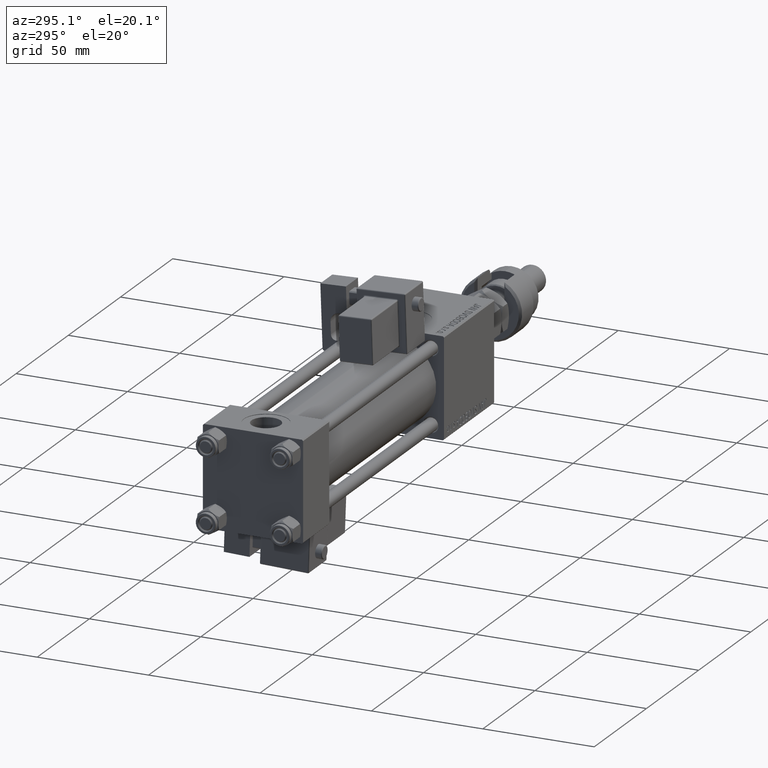
[diagram: clean part render]
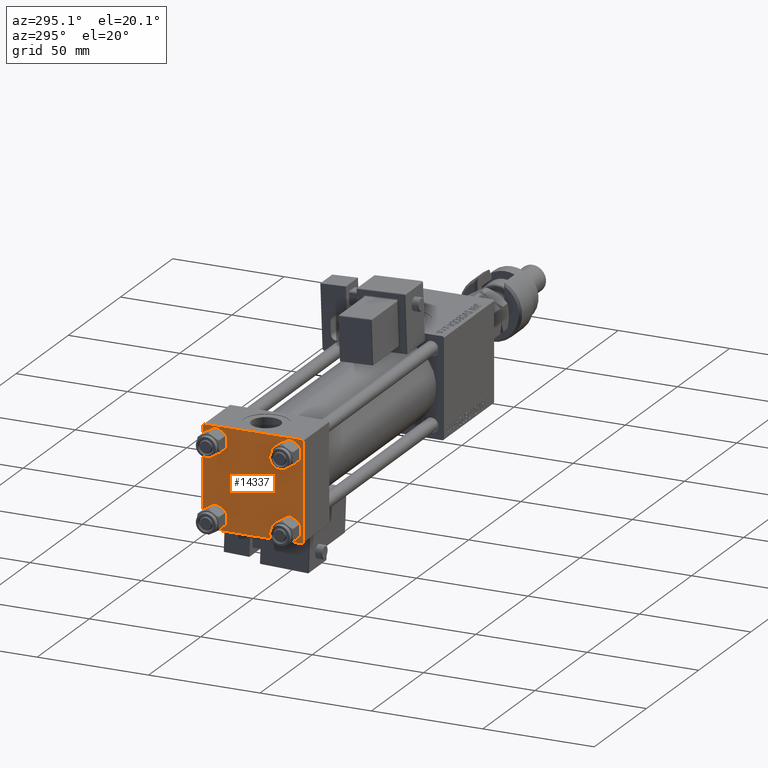
[diagram: same view with one face highlighted and labeled with its STEP entity id]
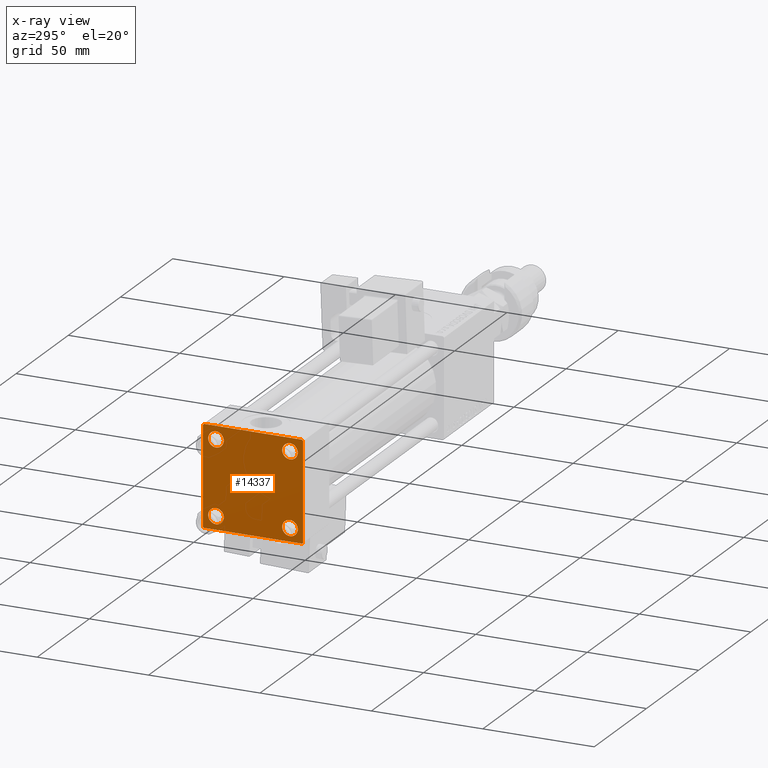
[diagram: x-ray of the same camera — body ghosted, the highlighted face saturated]
A machine part, auxiliary view. The second image highlights one B-rep face of the part: STEP entity #14337.
The next image is the same camera in x-ray: the body ghosted, the highlighted face saturated — about 0% of this face is hidden behind the body in this view.
In plain terms, the highlighted planar face has unit normal (-1, 0, 0).
Its self-contained STEP definition (entity closure, byte-faithful):
#476 = DIRECTION ( 'NONE',  ( 1.000000000000000000, -0.000000000000000000, 0.000000000000000000 ) ) ;
#650 = ORIENTED_EDGE ( 'NONE', *, *, #30111, .T. ) ;
#701 = EDGE_CURVE ( 'NONE', #41453, #17870, #5149, .T. ) ;
#1367 = FACE_BOUND ( 'NONE', #24085, .T. ) ;
#1560 = DIRECTION ( 'NONE',  ( 0.000000000000000000, -1.000000000000000000, -2.312964634635742957E-16 ) ) ;
#1892 = EDGE_CURVE ( 'NONE', #40376, #3879, #41025, .T. ) ;
#2124 = EDGE_CURVE ( 'NONE', #44728, #48340, #21496, .T. ) ;
#2799 = EDGE_LOOP ( 'NONE', ( #26345, #6309, #12219, #24289, #31680, #43144, #7114, #26350 ) ) ;
#2981 = DIRECTION ( 'NONE',  ( 0.000000000000000000, 0.000000000000000000, 1.000000000000000000 ) ) ;
#3831 = EDGE_CURVE ( 'NONE', #42418, #10926, #35740, .T. ) ;
#3879 = VERTEX_POINT ( 'NONE', #25430 ) ;
#4368 = CARTESIAN_POINT ( 'NONE',  ( 0.000000000000000000, -21.99999999999997158, -22.50000000000000711 ) ) ;
#4454 = DIRECTION ( 'NONE',  ( 1.000000000000000000, -0.000000000000000000, 0.000000000000000000 ) ) ;
#5149 = CIRCLE ( 'NONE', #42728, 3.499999999999996003 ) ;
#5194 = EDGE_LOOP ( 'NONE', ( #650, #6155 ) ) ;
#5552 = DIRECTION ( 'NONE',  ( 1.000000000000000000, -0.000000000000000000, 0.000000000000000000 ) ) ;
#6043 = CARTESIAN_POINT ( 'NONE',  ( 0.000000000000000000, -22.50000000000000000, 22.50000000000000000 ) ) ;
#6155 = ORIENTED_EDGE ( 'NONE', *, *, #3831, .T. ) ;
#6179 = CIRCLE ( 'NONE', #41207, 3.499999999999996003 ) ;
#6309 = ORIENTED_EDGE ( 'NONE', *, *, #50210, .T. ) ;
#6669 = CARTESIAN_POINT ( 'NONE',  ( 0.000000000000000000, 16.59999999999999787, 16.60000000000000497 ) ) ;
#7114 = ORIENTED_EDGE ( 'NONE', *, *, #2124, .F. ) ;
#7209 = LINE ( 'NONE', #19569, #28742 ) ;
#7250 = AXIS2_PLACEMENT_3D ( 'NONE', #23286, #4454, #50723 ) ;
#7616 = CARTESIAN_POINT ( 'NONE',  ( 0.000000000000000000, 22.25000000000014566, -22.24999999999984013 ) ) ;
#8020 = CIRCLE ( 'NONE', #10745, 3.499999999999996003 ) ;
#8082 = CARTESIAN_POINT ( 'NONE',  ( 0.000000000000000000, 21.99999999999999289, 22.50000000000000355 ) ) ;
#8653 = ORIENTED_EDGE ( 'NONE', *, *, #30195, .T. ) ;
#9037 = CIRCLE ( 'NONE', #27857, 3.499999999999996003 ) ;
#9195 = DIRECTION ( 'NONE',  ( 0.000000000000000000, 0.000000000000000000, 1.000000000000000000 ) ) ;
#9680 = VECTOR ( 'NONE', #14198, 1000.000000000000000 ) ;
#9756 = FACE_BOUND ( 'NONE', #40023, .T. ) ;
#9881 = EDGE_LOOP ( 'NONE', ( #41195, #38157 ) ) ;
#10745 = AXIS2_PLACEMENT_3D ( 'NONE', #52081, #5552, #9195 ) ;
#10926 = VERTEX_POINT ( 'NONE', #49855 ) ;
#11100 = CARTESIAN_POINT ( 'NONE',  ( 0.000000000000000000, 16.59999999999999787, 16.60000000000000497 ) ) ;
#11457 = CARTESIAN_POINT ( 'NONE',  ( 0.000000000000000000, 16.59999999999999787, 13.10000000000000675 ) ) ;
#12219 = ORIENTED_EDGE ( 'NONE', *, *, #17658, .T. ) ;
#13217 = VECTOR ( 'NONE', #47177, 1000.000000000000000 ) ;
#14198 = DIRECTION ( 'NONE',  ( 0.000000000000000000, -1.000000000000000000, -7.709882115452476934E-17 ) ) ;
#14337 = ADVANCED_FACE ( 'NONE', ( #1367, #44510, #40320, #9756, #31343 ), #39478, .T. ) ;
#14495 = CARTESIAN_POINT ( 'NONE',  ( 0.000000000000000000, -21.99999999999997868, 22.50000000000000000 ) ) ;
#15304 = DIRECTION ( 'NONE',  ( 0.000000000000000000, 0.000000000000000000, -1.000000000000000000 ) ) ;
#15758 = CARTESIAN_POINT ( 'NONE',  ( 0.000000000000000000, -22.50000000000000000, 22.00000000000000000 ) ) ;
#15762 = ORIENTED_EDGE ( 'NONE', *, *, #1892, .T. ) ;
#15763 = DIRECTION ( 'NONE',  ( -0.000000000000000000, -0.7071067811865426878, -0.7071067811865524577 ) ) ;
#16664 = CARTESIAN_POINT ( 'NONE',  ( 0.000000000000000000, -22.25000000000014566, -22.24999999999984013 ) ) ;
#17658 = EDGE_CURVE ( 'NONE', #37456, #45810, #36043, .T. ) ;
#17758 = LINE ( 'NONE', #16664, #13217 ) ;
#17844 = CARTESIAN_POINT ( 'NONE',  ( 0.000000000000000000, 16.59999999999999787, -16.60000000000000497 ) ) ;
#17870 = VERTEX_POINT ( 'NONE', #20998 ) ;
#18732 = AXIS2_PLACEMENT_3D ( 'NONE', #34134, #50957, #38333 ) ;
#19295 = DIRECTION ( 'NONE',  ( -0.000000000000000000, 0.000000000000000000, 1.000000000000000000 ) ) ;
#19556 = CARTESIAN_POINT ( 'NONE',  ( 0.000000000000000000, -16.59999999999999076, -20.10000000000000497 ) ) ;
#19569 = CARTESIAN_POINT ( 'NONE',  ( 0.000000000000000000, 22.50000000000000000, 22.50000000000000355 ) ) ;
#20998 = CARTESIAN_POINT ( 'NONE',  ( 0.000000000000000000, 16.59999999999999787, -20.10000000000000142 ) ) ;
#21496 = LINE ( 'NONE', #34653, #9680 ) ;
#21514 = CARTESIAN_POINT ( 'NONE',  ( -0.000000000000000000, -22.24999999999984013, 22.25000000000015277 ) ) ;
#23286 = CARTESIAN_POINT ( 'NONE',  ( 0.000000000000000000, -16.59999999999999076, 16.60000000000000853 ) ) ;
#23567 = DIRECTION ( 'NONE',  ( 0.000000000000000000, 0.000000000000000000, 1.000000000000000000 ) ) ;
#24085 = EDGE_LOOP ( 'NONE', ( #52405, #8653 ) ) ;
#24289 = ORIENTED_EDGE ( 'NONE', *, *, #42907, .T. ) ;
#24501 = VERTEX_POINT ( 'NONE', #49625 ) ;
#25430 = CARTESIAN_POINT ( 'NONE',  ( 0.000000000000000000, 16.59999999999999787, 20.10000000000000142 ) ) ;
#25878 = EDGE_CURVE ( 'NONE', #17870, #41453, #6179, .T. ) ;
#26139 = EDGE_CURVE ( 'NONE', #3879, #40376, #27699, .T. ) ;
#26345 = ORIENTED_EDGE ( 'NONE', *, *, #50668, .T. ) ;
#26350 = ORIENTED_EDGE ( 'NONE', *, *, #42541, .T. ) ;
#26385 = CARTESIAN_POINT ( 'NONE',  ( 0.000000000000000000, 21.99999999999999289, -22.49999999999999645 ) ) ;
#26462 = CARTESIAN_POINT ( 'NONE',  ( 0.000000000000000000, 22.50000000000000000, 21.99999999999999645 ) ) ;
#26811 = LINE ( 'NONE', #21514, #29345 ) ;
#26872 = VERTEX_POINT ( 'NONE', #37799 ) ;
#27062 = DIRECTION ( 'NONE',  ( 0.000000000000000000, 0.000000000000000000, 1.000000000000000000 ) ) ;
#27260 = VECTOR ( 'NONE', #15304, 1000.000000000000000 ) ;
#27699 = CIRCLE ( 'NONE', #49153, 3.499999999999996003 ) ;
#27857 = AXIS2_PLACEMENT_3D ( 'NONE', #28299, #53276, #23567 ) ;
#27865 = VECTOR ( 'NONE', #15763, 1000.000000000000000 ) ;
#28092 = DIRECTION ( 'NONE',  ( 1.000000000000000000, -0.000000000000000000, 0.000000000000000000 ) ) ;
#28299 = CARTESIAN_POINT ( 'NONE',  ( 0.000000000000000000, -16.59999999999999076, -16.60000000000000853 ) ) ;
#28620 = VERTEX_POINT ( 'NONE', #15758 ) ;
#28742 = VECTOR ( 'NONE', #32178, 1000.000000000000000 ) ;
#29300 = VERTEX_POINT ( 'NONE', #48711 ) ;
#29345 = VECTOR ( 'NONE', #30189, 999.9999999999998863 ) ;
#30111 = EDGE_CURVE ( 'NONE', #10926, #42418, #9037, .T. ) ;
#30150 = LINE ( 'NONE', #43590, #31101 ) ;
#30189 = DIRECTION ( 'NONE',  ( -0.000000000000000000, 0.7071067811865525687, 0.7071067811865425767 ) ) ;
#30195 = EDGE_CURVE ( 'NONE', #24501, #44689, #44867, .T. ) ;
#31101 = VECTOR ( 'NONE', #38568, 1000.000000000000114 ) ;
#31266 = CARTESIAN_POINT ( 'NONE',  ( 0.000000000000000000, 16.59999999999999787, -16.60000000000000497 ) ) ;
#31343 = FACE_OUTER_BOUND ( 'NONE', #2799, .T. ) ;
#31680 = ORIENTED_EDGE ( 'NONE', *, *, #34803, .F. ) ;
#31904 = DIRECTION ( 'NONE',  ( 0.000000000000000000, 0.000000000000000000, 1.000000000000000000 ) ) ;
#32178 = DIRECTION ( 'NONE',  ( 0.000000000000000000, 0.000000000000000000, -1.000000000000000000 ) ) ;
#34134 = CARTESIAN_POINT ( 'NONE',  ( 0.000000000000000000, -16.59999999999999076, -16.60000000000000853 ) ) ;
#34653 = CARTESIAN_POINT ( 'NONE',  ( 0.000000000000000000, 22.50000000000000000, 22.50000000000000355 ) ) ;
#34803 = EDGE_CURVE ( 'NONE', #28620, #29300, #48651, .T. ) ;
#35273 = CARTESIAN_POINT ( 'NONE',  ( 0.000000000000000000, 0.000000000000000000, 0.000000000000000000 ) ) ;
#35740 = CIRCLE ( 'NONE', #18732, 3.499999999999996003 ) ;
#36043 = LINE ( 'NONE', #44155, #39995 ) ;
#36932 = CARTESIAN_POINT ( 'NONE',  ( 0.000000000000000000, 16.59999999999999787, -13.10000000000000675 ) ) ;
#37456 = VERTEX_POINT ( 'NONE', #26385 ) ;
#37799 = CARTESIAN_POINT ( 'NONE',  ( 0.000000000000000000, 22.50000000000000000, -21.99999999999996803 ) ) ;
#38157 = ORIENTED_EDGE ( 'NONE', *, *, #25878, .T. ) ;
#38333 = DIRECTION ( 'NONE',  ( 0.000000000000000000, 0.000000000000000000, 1.000000000000000000 ) ) ;
#38568 = DIRECTION ( 'NONE',  ( 0.000000000000000000, 0.7071067811865474617, -0.7071067811865474617 ) ) ;
#39478 = PLANE ( 'NONE',  #49682 ) ;
#39812 = EDGE_CURVE ( 'NONE', #28620, #48340, #26811, .T. ) ;
#39995 = VECTOR ( 'NONE', #1560, 1000.000000000000000 ) ;
#40023 = EDGE_LOOP ( 'NONE', ( #53324, #15762 ) ) ;
#40041 = DIRECTION ( 'NONE',  ( -1.000000000000000000, 0.000000000000000000, -0.000000000000000000 ) ) ;
#40320 = FACE_BOUND ( 'NONE', #9881, .T. ) ;
#40376 = VERTEX_POINT ( 'NONE', #11457 ) ;
#41025 = CIRCLE ( 'NONE', #53553, 3.499999999999996003 ) ;
#41195 = ORIENTED_EDGE ( 'NONE', *, *, #701, .T. ) ;
#41207 = AXIS2_PLACEMENT_3D ( 'NONE', #17844, #476, #50467 ) ;
#41453 = VERTEX_POINT ( 'NONE', #36932 ) ;
#42418 = VERTEX_POINT ( 'NONE', #19556 ) ;
#42541 = EDGE_CURVE ( 'NONE', #44728, #47258, #30150, .T. ) ;
#42728 = AXIS2_PLACEMENT_3D ( 'NONE', #31266, #28092, #27062 ) ;
#42907 = EDGE_CURVE ( 'NONE', #45810, #29300, #17758, .T. ) ;
#43144 = ORIENTED_EDGE ( 'NONE', *, *, #39812, .T. ) ;
#43590 = CARTESIAN_POINT ( 'NONE',  ( 0.000000000000000000, 22.24999999999999645, 22.24999999999999645 ) ) ;
#44155 = CARTESIAN_POINT ( 'NONE',  ( 0.000000000000000000, 22.50000000000000000, -22.49999999999999645 ) ) ;
#44510 = FACE_BOUND ( 'NONE', #5194, .T. ) ;
#44689 = VERTEX_POINT ( 'NONE', #45661 ) ;
#44728 = VERTEX_POINT ( 'NONE', #8082 ) ;
#44795 = DIRECTION ( 'NONE',  ( 1.000000000000000000, -0.000000000000000000, 0.000000000000000000 ) ) ;
#44867 = CIRCLE ( 'NONE', #7250, 3.499999999999996003 ) ;
#45661 = CARTESIAN_POINT ( 'NONE',  ( 0.000000000000000000, -16.59999999999999076, 20.10000000000000853 ) ) ;
#45810 = VERTEX_POINT ( 'NONE', #4368 ) ;
#45853 = DIRECTION ( 'NONE',  ( 1.000000000000000000, -0.000000000000000000, 0.000000000000000000 ) ) ;
#47074 = EDGE_CURVE ( 'NONE', #44689, #24501, #8020, .T. ) ;
#47177 = DIRECTION ( 'NONE',  ( 0.000000000000000000, -0.7071067811865426878, 0.7071067811865524577 ) ) ;
#47258 = VERTEX_POINT ( 'NONE', #26462 ) ;
#48340 = VERTEX_POINT ( 'NONE', #14495 ) ;
#48651 = LINE ( 'NONE', #6043, #27260 ) ;
#48711 = CARTESIAN_POINT ( 'NONE',  ( 0.000000000000000000, -22.50000000000000000, -21.99999999999997158 ) ) ;
#49153 = AXIS2_PLACEMENT_3D ( 'NONE', #11100, #45853, #2981 ) ;
#49625 = CARTESIAN_POINT ( 'NONE',  ( 0.000000000000000000, -16.59999999999999076, 13.10000000000001030 ) ) ;
#49682 = AXIS2_PLACEMENT_3D ( 'NONE', #35273, #40041, #19295 ) ;
#49855 = CARTESIAN_POINT ( 'NONE',  ( 0.000000000000000000, -16.59999999999999076, -13.10000000000001030 ) ) ;
#50210 = EDGE_CURVE ( 'NONE', #26872, #37456, #54163, .T. ) ;
#50467 = DIRECTION ( 'NONE',  ( 0.000000000000000000, 0.000000000000000000, 1.000000000000000000 ) ) ;
#50668 = EDGE_CURVE ( 'NONE', #47258, #26872, #7209, .T. ) ;
#50723 = DIRECTION ( 'NONE',  ( 0.000000000000000000, 0.000000000000000000, 1.000000000000000000 ) ) ;
#50957 = DIRECTION ( 'NONE',  ( 1.000000000000000000, -0.000000000000000000, 0.000000000000000000 ) ) ;
#52081 = CARTESIAN_POINT ( 'NONE',  ( 0.000000000000000000, -16.59999999999999076, 16.60000000000000853 ) ) ;
#52405 = ORIENTED_EDGE ( 'NONE', *, *, #47074, .T. ) ;
#53276 = DIRECTION ( 'NONE',  ( 1.000000000000000000, -0.000000000000000000, 0.000000000000000000 ) ) ;
#53324 = ORIENTED_EDGE ( 'NONE', *, *, #26139, .T. ) ;
#53553 = AXIS2_PLACEMENT_3D ( 'NONE', #6669, #44795, #31904 ) ;
#54163 = LINE ( 'NONE', #7616, #27865 ) ;